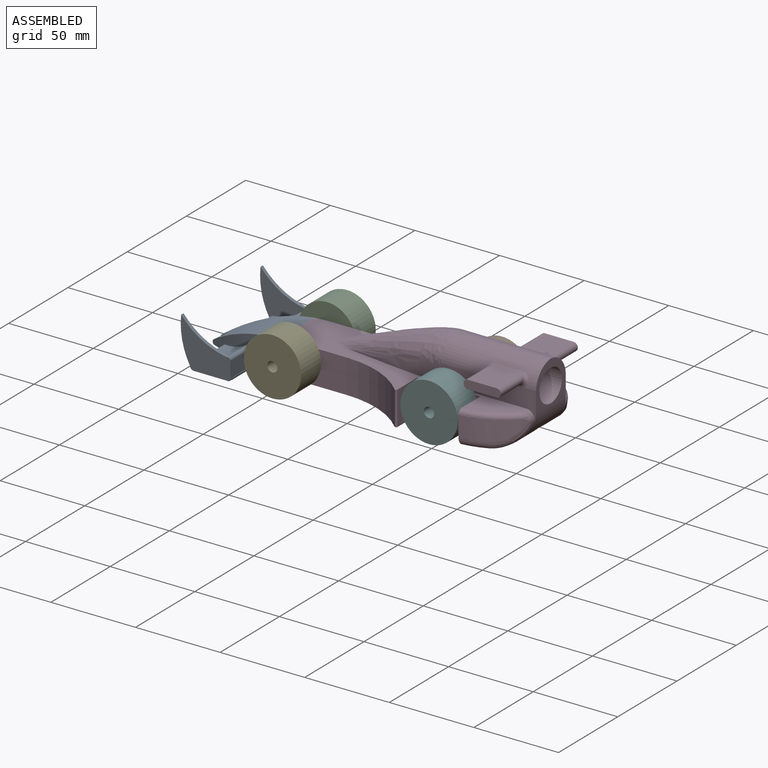
[diagram: assembled view]
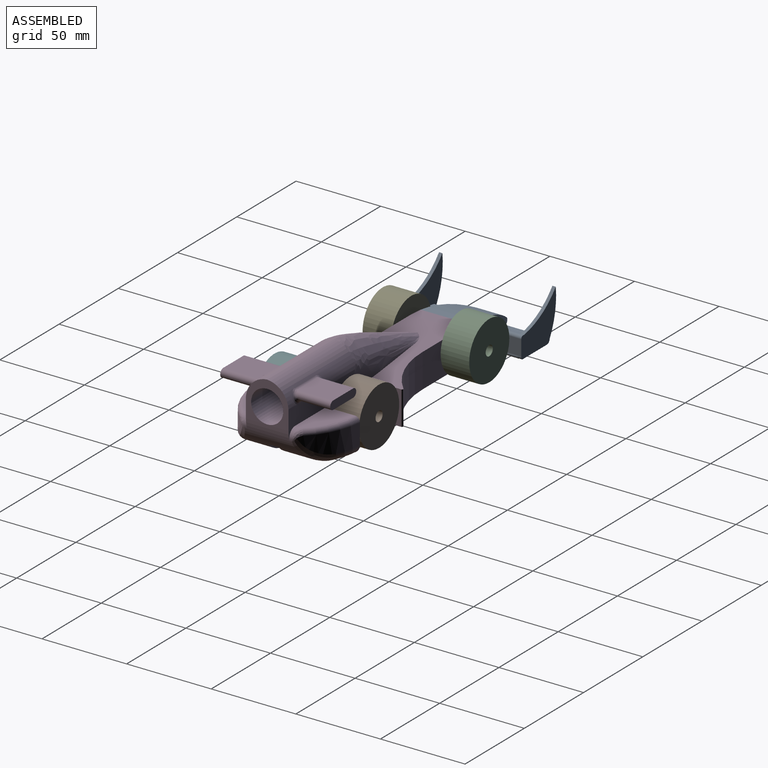
[diagram: assembled view, second angle]
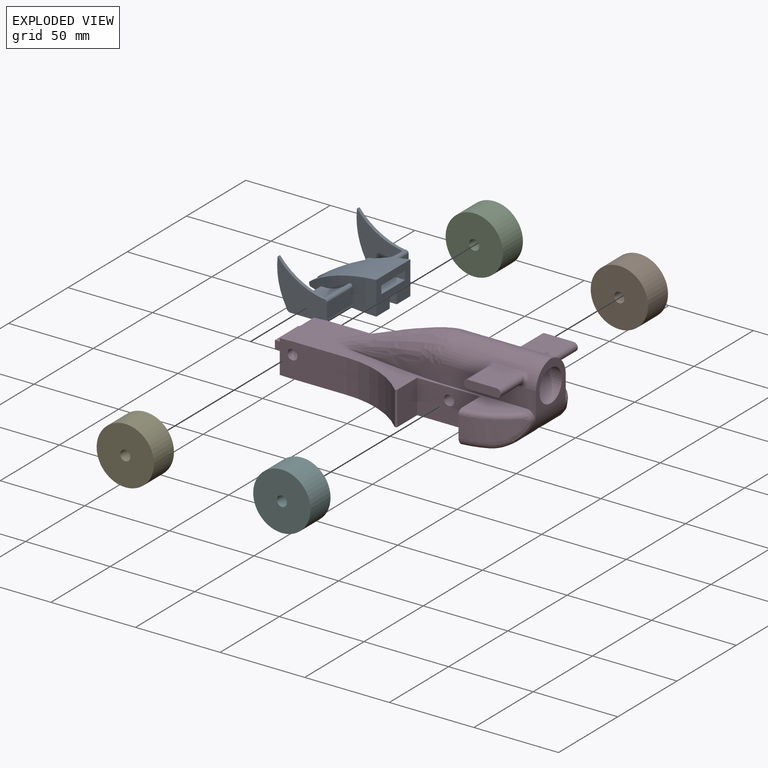
[diagram: exploded view]
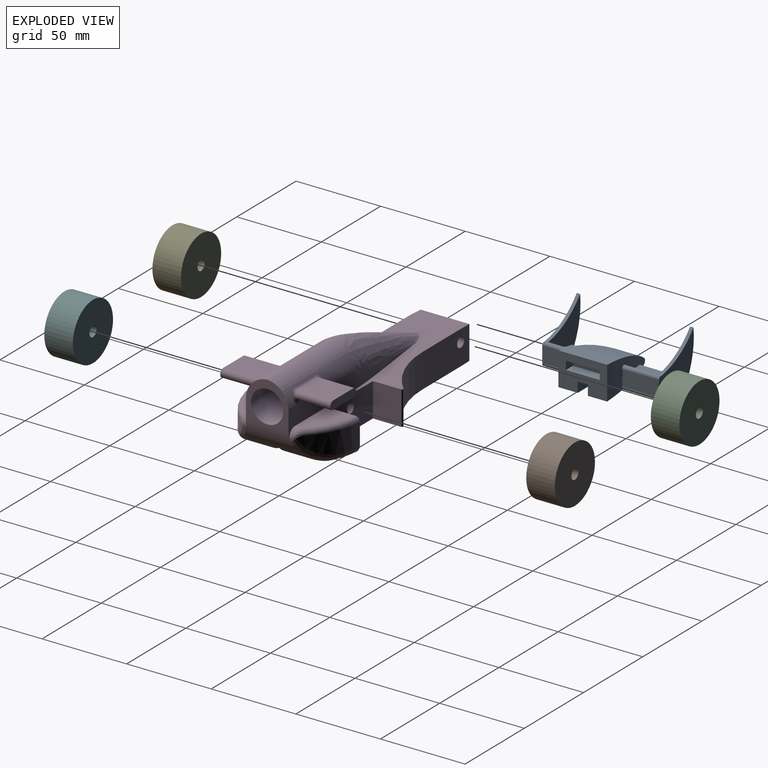
[diagram: exploded view, second angle]
ASSEMBLY  parts=6 mates=5
PART A: 42 faces, bbox 47.1x69x28.2 mm
  f0: plane 2.05x1.94mm, normal (0,-1,0), area 0.3mm2, adj f9,f11
  f1: cylinder r=43.56mm len=26.88mm, axis (0,1,0), area 63.4mm2, adj f2,f3,f8,f13
  f2: plane 27.14x25.83mm, normal (0,1,0), area 303.5mm2, adj f1,f3,f14,f15
  f3: cylinder r=43.68mm len=25.83mm, axis (0,1,0), area 53.5mm2, adj f1,f2,f8,f16
  f4: cylinder r=43.68mm len=25.83mm, axis (0,-1,0), area 53.5mm2, adj f5,f6,f20,f21
  f5: plane 27.14x25.83mm, normal (0,-1,0), area 303.5mm2, adj f4,f6,f22,f23
  f6: cylinder r=43.56mm len=26.88mm, axis (0,-1,0), area 63.4mm2, adj f4,f5,f20,f24
  f7: plane 2.05x1.94mm, normal (0,1,0), area 0.3mm2, adj f19,f26
  f8: plane 29.43x28.15mm, normal (0,-1,0), area 471mm2, adj f1,f3,f9,f12,f13,f16,f35
  f9: cylinder r=1.5mm len=2mm, axis (0,1,0), area 6.5mm2, adj f0,f8,f12,f35
  f10: cylinder r=146.73mm len=1.27mm, axis (0,0,1), area 0.1mm2, adj f11,f35
  f11: cylinder r=1.41mm len=20.06mm, axis (0,-1,0), area 67.8mm2, adj f0,f10,f12,f34,f35
  f12: plane 21.73x9.29mm, normal (-1,0,0), area 201.9mm2, adj f8,f9,f11,f13,f34
  f13: cylinder r=1.62mm len=22.11mm, axis (0,-1,0), area 69.8mm2, adj f1,f8,f12,f14,f34
  f14: cylinder r=33.87mm len=24.88mm, axis (0,-1,0), area 479mm2, adj f2,f13,f15,f34
  f15: cylinder r=3.59mm len=25.68mm, axis (0,-1,0), area 73.6mm2, adj f2,f14,f16,f34
  f16: cylinder r=2.4mm len=27.68mm, axis (0,-1,0), area 98.8mm2, adj f3,f8,f15,f34,f35
  f17: cylinder r=1.4mm len=2.54mm, axis (0,1,0), area 3.5mm2, adj f32,f33,f34,f35
  f18: cylinder r=146.73mm len=1.27mm, axis (0,0,1), area 0.1mm2, adj f26,f30
  f19: cylinder r=1.5mm len=2mm, axis (0,-1,0), area 6.5mm2, adj f7,f20,f25,f30
  f20: plane 29.43x28.15mm, normal (0,1,0), area 471mm2, adj f4,f6,f19,f21,f24,f25,f30
  f21: cylinder r=2.4mm len=27.68mm, axis (0,1,0), area 98.8mm2, adj f4,f20,f22,f28,f30
  f22: cylinder r=3.59mm len=25.68mm, axis (0,1,0), area 73.6mm2, adj f5,f21,f23,f28
  f23: cylinder r=33.87mm len=24.88mm, axis (0,1,0), area 479mm2, adj f5,f22,f24,f28
  f24: cylinder r=1.62mm len=22.11mm, axis (0,1,0), area 69.8mm2, adj f6,f20,f23,f25,f28
  f25: plane 21.73x9.29mm, normal (-1,0,0), area 201.9mm2, adj f19,f20,f24,f26,f28
  f26: cylinder r=1.41mm len=20.06mm, axis (0,1,0), area 67.8mm2, adj f7,f18,f25,f28,f30
  f27: cylinder r=1.4mm len=2.54mm, axis (0,-1,0), area 3.5mm2, adj f28,f29,f30,f33
  f28: cylinder r=146.73mm len=47.08mm, axis (0,0,1), area 467.2mm2, adj f21,f22,f23,f24,f25,f26,f27,f30
  f29: plane 47.08x6mm, normal (0,-1,0), area 271mm2, adj f27,f30,f31,f33,f36
  f30: plane 45.68x31.5mm, normal (0,0,1), area 826.2mm2, adj f18,f19,f20,f21,f26,f27,f28,f29
  f31: plane 41.27x6mm, normal (0,0,1), area 247.6mm2, adj f29,f32,f33,f36
  f32: plane 47.08x6mm, normal (0,1,0), area 271mm2, adj f17,f31,f33,f35,f36
  f33: cylinder r=94.4mm len=46.49mm, axis (0,1,0), area 1003.4mm2, adj f17,f27,f28,f29,f31,f32,f34,f36
  f34: cylinder r=146.73mm len=47.08mm, axis (0,0,1), area 467.2mm2, adj f11,f12,f13,f14,f15,f16,f17,f33
  f35: plane 45.68x31.5mm, normal (0,0,1), area 826.2mm2, adj f8,f9,f10,f11,f16,f17,f32,f34
  f36: plane 28.77x19.64mm, normal (-1,0,0), area 429.2mm2, adj f28,f29,f30,f31,f32,f33,f34,f35
  f37: plane 20x6mm, normal (0,0,-1), area 120mm2, adj f36,f38,f40,f41
  f38: plane 6x5mm, normal (0,1,0), area 30mm2, adj f36,f37,f39,f41
  f39: plane 20x6mm, normal (0,0,1), area 120mm2, adj f36,f38,f40,f41
  f40: plane 6x5mm, normal (0,-1,0), area 30mm2, adj f36,f37,f39,f41
  f41: plane 20x5mm, normal (-1,0,0), area 100mm2, adj f37,f38,f39,f40
PART B: 4 faces, bbox 33.9x16.9x33.9 mm
  f0: cylinder r=3mm len=16.89mm, axis (0,-1,0), area 318.4mm2, adj f2,f3
  f1: cylinder r=16.94mm len=33.89mm, axis (0,-1,0), area 1798mm2, adj f2,f3
  f2: plane 33.89x33.89mm, normal (0,1,0), area 873.5mm2, adj f0,f1
  f3: plane 33.89x33.89mm, normal (0,-1,0), area 873.5mm2, adj f0,f1
PART C: 4 faces, bbox 33.9x16.9x33.9 mm
  f0: cylinder r=3mm len=16.89mm, axis (0,1,0), area 318.4mm2, adj f2,f3
  f1: cylinder r=16.94mm len=33.89mm, axis (0,1,0), area 1798mm2, adj f2,f3
  f2: plane 33.89x33.89mm, normal (0,-1,0), area 873.5mm2, adj f0,f1
  f3: plane 33.89x33.89mm, normal (0,1,0), area 873.5mm2, adj f0,f1
PART D: 77 faces, bbox 156.7x72.9x44.2 mm
  f0: plane 28.77x19.64mm, normal (1,0,0), area 243.2mm2, adj f1,f2,f3,f4,f5,f6,f7,f8
  f1: plane 130.79x28.39mm, normal (0,0,1), area 1867.3mm2, adj f0,f2,f4,f11,f12,f13,f14,f15
  f2: cylinder r=146.73mm len=20mm, axis (0,0,1), area 143.8mm2, adj f0,f1,f3,f15,f30
  f3: cylinder r=94.4mm len=29.22mm, axis (0,1,0), area 238.8mm2, adj f0,f2,f7,f15,f16,f38
  f4: plane 144.78x6mm, normal (0,1,0), area 842.7mm2, adj f0,f1,f5,f28
  f5: plane 144.78x6mm, normal (0,0,1), area 868.7mm2, adj f0,f4,f8,f28
  f6: plane 130.79x28.39mm, normal (0,0,1), area 1867.3mm2, adj f0,f7,f8,f28,f34,f35,f36,f37
  f7: cylinder r=146.73mm len=20mm, axis (0,0,1), area 143.8mm2, adj f0,f3,f6,f30,f38
  f8: plane 144.78x6mm, normal (0,-1,0), area 842.7mm2, adj f0,f5,f6,f28
  f9: plane 25.23x24.13mm, normal (-1,0,0), area 247.2mm2, adj f17,f18,f19,f28,f39,f40
  f10: cylinder r=44.38mm len=30.28mm, axis (0,0,1), area 361.4mm2, adj f11,f31,f72,f73,f75
  f11: plane 20.22x18.71mm, normal (1,0,0), area 362.5mm2, adj f1,f10,f12,f16,f31,f72
  f12: plane 37.36x20mm, normal (0,-1,0), area 719mm2, adj f1,f11,f13,f16,f29
  f13: plane 20x16.62mm, normal (-1,0,0), area 332.4mm2, adj f1,f12,f16,f32
  f14: cylinder r=56.52mm len=39.97mm, axis (0,0,1), area 887.9mm2, adj f1,f15,f16,f32
  f15: plane 31.55x20mm, normal (0,-1,0), area 619.5mm2, adj f1,f2,f3,f14,f16,f30
  f16: plane 136.85x63.39mm, normal (0,0,-1), area 2425.3mm2, adj f3,f11,f12,f13,f14,f15,f17,f21
  f17: plane 56x15.51mm, normal (0,-1,0), area 512.1mm2, adj f9,f16,f18,f22,f28,f76
  f18: cylinder r=13.5mm len=56mm, axis (-1,0,0), area 1049.4mm2, adj f9,f17,f21,f40,f54,f55,f56,f57
  f19: cylinder r=9.5mm len=52mm, axis (-1,0,0), area 3103.9mm2, adj f9,f20
  f20: plane 19x19mm, normal (-1,0,0), area 283.5mm2, adj f19
  f21: bspline ~71.06x23.44mm, area 967mm2, adj f16,f18,f22,f41
  f22: bspline ~65.75x9mm, area 339.9mm2, adj f16,f17,f21
  f23: cylinder r=2.5mm len=21.13mm, axis (0,-1,0), area 153.2mm2, adj f24,f25,f26,f55
  f24: plane 21.91x5mm, normal (0,-1,0), area 104.2mm2, adj f23,f25,f26,f27
  f25: plane 21.13x16.91mm, normal (0,0,-1), area 357.2mm2, adj f23,f24,f27,f54
  f26: plane 17.89x16.91mm, normal (0,0,1), area 302.5mm2, adj f23,f24,f27,f57
  f27: cylinder r=2.5mm len=21.13mm, axis (0,-1,0), area 153.2mm2, adj f24,f25,f26,f56
  f28: cylinder r=19.31mm len=48.17mm, axis (0,-1,0), area 978.3mm2, adj f1,f4,f5,f6,f8,f9,f17,f39
  f29: cylinder r=3mm len=28.03mm, axis (0,-1,0), area 528.4mm2, adj f12,f35
  f30: cylinder r=3mm len=29.22mm, axis (0,-1,0), area 550.8mm2, adj f2,f7,f15,f38
  f31: torus R=41.48mm, axis (0,0,1), area 141.9mm2, adj f10,f11,f16,f75
  f32: cylinder r=0.76mm len=20mm, axis (0,0,1), area 35.6mm2, adj f1,f13,f14,f16
  f33: cylinder r=44.38mm len=30.28mm, axis (0,0,1), area 361.4mm2, adj f34,f48,f67,f68,f69
  f34: plane 20.22x18.71mm, normal (1,0,0), area 362.5mm2, adj f6,f16,f33,f35,f48,f67
  f35: plane 37.36x20mm, normal (0,1,0), area 719mm2, adj f6,f16,f29,f34,f36
  f36: plane 20x16.62mm, normal (-1,0,0), area 332.4mm2, adj f6,f16,f35,f49
  f37: cylinder r=56.52mm len=39.97mm, axis (0,0,1), area 887.9mm2, adj f6,f16,f38,f49
  f38: plane 31.55x20mm, normal (0,1,0), area 619.5mm2, adj f3,f6,f7,f16,f30,f37
  f39: plane 56x15.51mm, normal (0,1,0), area 512.1mm2, adj f9,f16,f28,f40,f42,f71
  f40: cylinder r=13.5mm len=56mm, axis (-1,0,0), area 1049.4mm2, adj f9,f18,f39,f41,f50,f51,f52,f53
  f41: bspline ~71.06x23.44mm, area 967mm2, adj f16,f21,f40,f42
  f42: bspline ~65.75x9mm, area 339.9mm2, adj f16,f39,f41
  f43: cylinder r=2.5mm len=21.13mm, axis (0,1,0), area 153.2mm2, adj f44,f45,f46,f51
  f44: plane 21.91x5mm, normal (0,1,0), area 104.2mm2, adj f43,f45,f46,f47
  f45: plane 21.13x16.91mm, normal (0,0,-1), area 357.2mm2, adj f43,f44,f47,f50
  f46: plane 17.89x16.91mm, normal (0,0,1), area 302.5mm2, adj f43,f44,f47,f53
  f47: cylinder r=2.5mm len=21.13mm, axis (0,1,0), area 153.2mm2, adj f44,f45,f46,f52
  f48: torus R=41.48mm, axis (0,0,1), area 141.9mm2, adj f16,f33,f34,f69
  f49: cylinder r=0.76mm len=20mm, axis (0,0,1), area 35.6mm2, adj f6,f16,f36,f37
  f50: cylinder r=2mm len=16.91mm, axis (-1,0,0), area 30.8mm2, adj f40,f45,f51,f52
  f51: bspline ~7.84x5.51mm, area 29mm2, adj f40,f43,f50,f53
  f52: bspline ~7.84x5.51mm, area 28.9mm2, adj f40,f47,f50,f53
  f53: cylinder r=2mm len=16.91mm, axis (-1,0,0), area 54.2mm2, adj f40,f46,f51,f52
  f54: cylinder r=2mm len=16.91mm, axis (-1,0,0), area 30.8mm2, adj f18,f25,f55,f56
  f55: bspline ~7.84x5.51mm, area 29mm2, adj f18,f23,f54,f57
  f56: bspline ~7.84x5.51mm, area 28.9mm2, adj f18,f27,f54,f57
  f57: cylinder r=2mm len=16.91mm, axis (-1,0,0), area 54.2mm2, adj f18,f26,f55,f56
  f58: plane 20x3mm, normal (0,0,1), area 60mm2, adj f59,f61,f62,f63
  f59: plane 5x3mm, normal (0,-1,0), area 15mm2, adj f58,f60,f62,f64
  f60: plane 20x3mm, normal (0,0,-1), area 60mm2, adj f59,f61,f62,f66
  f61: plane 5x3mm, normal (0,1,0), area 15mm2, adj f58,f60,f62,f65
  f62: plane 20x5mm, normal (1,0,0), area 100mm2, adj f58,f59,f60,f61
  f63: cylinder r=3mm len=26mm, axis (0,-1,0), area 108.4mm2, adj f0,f58,f64,f65
  f64: cylinder r=3mm len=11mm, axis (0,0,-1), area 37.7mm2, adj f0,f59,f63,f66
  f65: cylinder r=3mm len=11mm, axis (0,0,1), area 37.7mm2, adj f0,f61,f63,f66
  f66: cylinder r=3mm len=26mm, axis (0,1,0), area 108.4mm2, adj f0,f60,f64,f65
  f67: torus R=39.38mm, axis (0,0,1), area 112.5mm2, adj f6,f33,f34,f68
  f68: bspline ~21.03x16.48mm, area 151.1mm2, adj f28,f33,f67,f70
  f69: bspline ~6.4x5.49mm, area 15.8mm2, adj f33,f48,f70,f71
  f70: bspline ~4.65x3.5mm, area 3.1mm2, adj f68,f69,f71
  f71: cylinder r=5mm len=6.51mm, axis (0,-1,0), area 24.2mm2, adj f16,f28,f39,f69,f70
  f72: torus R=39.38mm, axis (0,0,1), area 112.5mm2, adj f1,f10,f11,f73
  f73: bspline ~21.03x16.48mm, area 151.1mm2, adj f10,f28,f72,f74
  f74: bspline ~4.64x3.49mm, area 3.1mm2, adj f73,f75,f76
  f75: bspline ~6.4x5.49mm, area 15.8mm2, adj f10,f31,f74,f76
  f76: cylinder r=5mm len=6.51mm, axis (0,-1,0), area 24.2mm2, adj f16,f17,f28,f74,f75
PART E: 4 faces, bbox 33.9x16.9x33.9 mm
  f0: cylinder r=3mm len=16.89mm, axis (0,-1,0), area 318.4mm2, adj f2,f3
  f1: cylinder r=16.94mm len=33.89mm, axis (0,-1,0), area 1798mm2, adj f2,f3
  f2: plane 33.89x33.89mm, normal (0,1,0), area 873.5mm2, adj f0,f1
  f3: plane 33.89x33.89mm, normal (0,-1,0), area 873.5mm2, adj f0,f1
PART F: 4 faces, bbox 33.9x16.9x33.9 mm
  f0: cylinder r=3mm len=16.89mm, axis (0,1,0), area 318.4mm2, adj f2,f3
  f1: cylinder r=16.94mm len=33.89mm, axis (0,1,0), area 1798mm2, adj f2,f3
  f2: plane 33.89x33.89mm, normal (0,-1,0), area 873.5mm2, adj f0,f1
  f3: plane 33.89x33.89mm, normal (0,1,0), area 873.5mm2, adj f0,f1
PLACE A rot(axis=(0,1,0),180deg) t=(140.45,21.37,-10.34)mm
PLACE B rot(axis=(-0.29,-0.88,-0.37),0deg) t=(-52.34,67.88,15.54)mm
PLACE C rot(axis=(0,-1,0),0deg) t=(-52.34,20.37,15.54)mm
PLACE D rot(axis=(0,1,0),180deg) t=(140.45,21.37,-10.34)mm
PLACE E rot(axis=(0,-1,0),0deg) t=(-52.34,22.37,15.54)mm
PLACE F rot(axis=(0.25,-0.91,0.32),0deg) t=(-52.34,-25.15,15.54)mm
MATE fastened F.f0 <-> D.f29  axis (0,1,0) through (90.12,7.35,2.6)mm
MATE fastened B.f0 <-> D.f29  axis (0,-1,0) through (90.12,35.38,2.6)mm
MATE fastened A.f35 <-> D.f1  axis (0,0,-1) through (-9.65,18.37,-10.34)mm
MATE fastened C.f0 <-> D.f30  axis (0,-1,0) through (-2,35.98,2.6)mm
MATE fastened E.f0 <-> D.f30  axis (0,1,0) through (-2,6.76,2.6)mm
